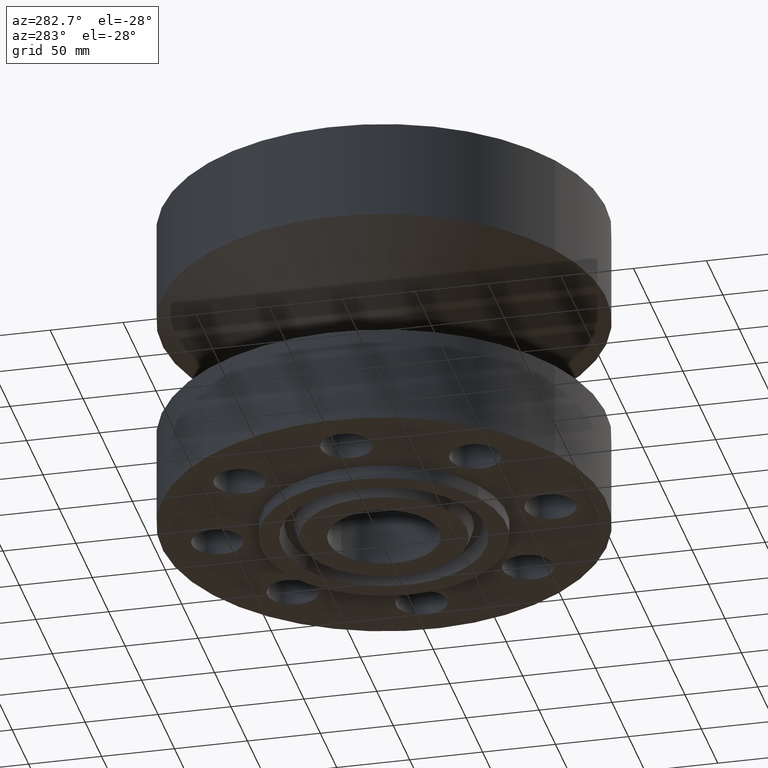
[diagram: clean part render]
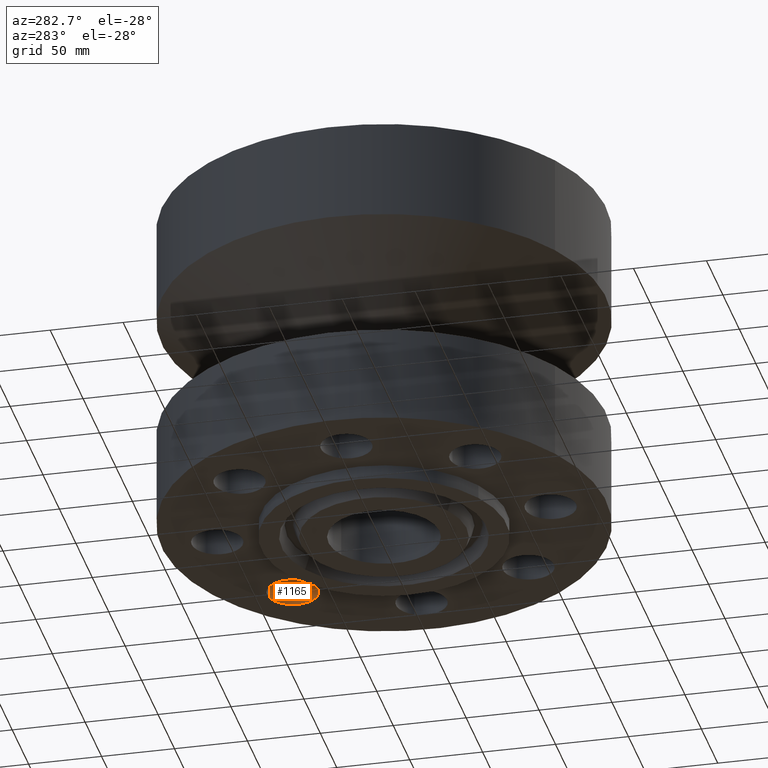
[diagram: same view with one face highlighted and labeled with its STEP entity id]
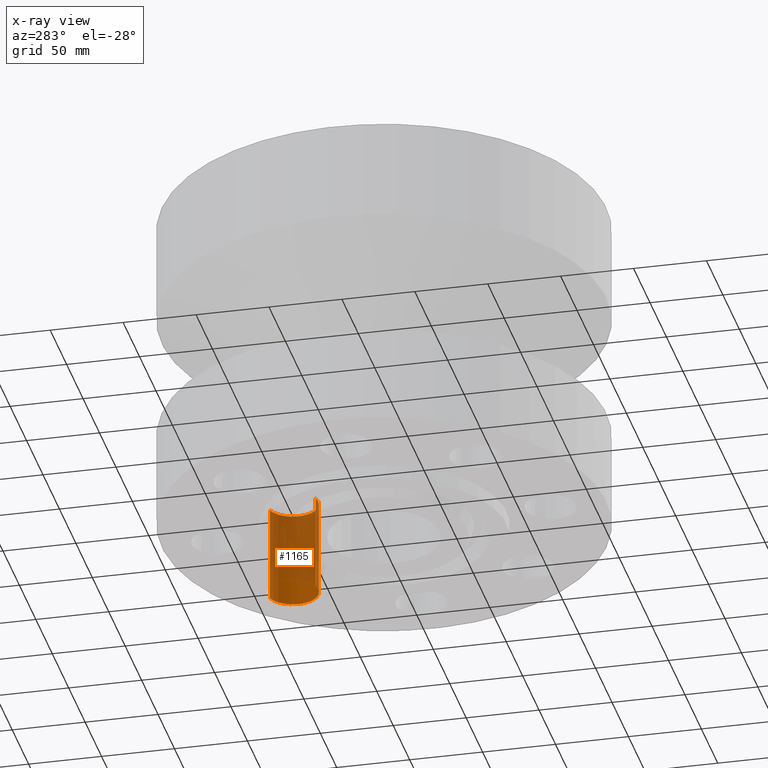
[diagram: x-ray of the same camera — body ghosted, the highlighted face saturated]
A machine part, auxiliary view. The second image highlights one B-rep face of the part: STEP entity #1165.
The next image is the same camera in x-ray: the body ghosted, the highlighted face saturated — about 70% of this face is hidden behind the body in this view.
In plain terms, the highlighted cylindrical surface (edge-blend (fillet) strip) has radius 17.526 mm, axis along (0, -0, 1).
Its self-contained STEP definition (entity closure, byte-faithful):
#235=AXIS2_PLACEMENT_3D('Circle Axis2P3D',#233,#234,$) ;
#1138=AXIS2_PLACEMENT_3D('Cylinder Axis2P3D',#1135,#1136,#1137) ;
#1156=AXIS2_PLACEMENT_3D('Circle Axis2P3D',#1154,#1155,$) ;
#233=CARTESIAN_POINT('Axis2P3D Location',(3.18198051535,3.18198051535,0.)) ;
#237=CARTESIAN_POINT('Vertex',(3.37624279184,3.84406976004,0.)) ;
#239=CARTESIAN_POINT('Vertex',(2.98771823886,2.51989127066,0.)) ;
#1135=CARTESIAN_POINT('Axis2P3D Location',(3.18198051535,3.18198051535,0.00393700787402)) ;
#1140=CARTESIAN_POINT('Line Origine',(3.37624279184,3.84406976004,1.31000000001)) ;
#1144=CARTESIAN_POINT('Vertex',(3.37624279184,3.84406976004,2.62000000001)) ;
#1147=CARTESIAN_POINT('Line Origine',(2.98771823886,2.51989127066,1.31000000001)) ;
#1151=CARTESIAN_POINT('Vertex',(2.98771823886,2.51989127066,2.62000000001)) ;
#1154=CARTESIAN_POINT('Axis2P3D Location',(3.18198051535,3.18198051535,2.62000000001)) ;
#234=DIRECTION('Axis2P3D Direction',(0.,0.,-0.0393700787402)) ;
#1136=DIRECTION('Axis2P3D Direction',(0.,-0.,0.0393700787402)) ;
#1137=DIRECTION('Axis2P3D XDirection',(0.0110842335096,0.0377775444876,0.)) ;
#1141=DIRECTION('Vector Direction',(0.,0.,0.0393700787402)) ;
#1148=DIRECTION('Vector Direction',(0.,0.,0.0393700787402)) ;
#1155=DIRECTION('Axis2P3D Direction',(0.,-0.,0.0393700787402)) ;
#1142=VECTOR('Line Direction',#1141,0.0393700787402) ;
#1149=VECTOR('Line Direction',#1148,0.0393700787402) ;
#1160=ORIENTED_EDGE('',*,*,#1146,.T.) ;
#1161=ORIENTED_EDGE('',*,*,#241,.T.) ;
#1162=ORIENTED_EDGE('',*,*,#1153,.F.) ;
#1163=ORIENTED_EDGE('',*,*,#1158,.F.) ;
#1165=ADVANCED_FACE('PartBody',(#1164),#1139,.F.) ;
#236=CIRCLE('generated circle',#235,0.690000000003) ;
#1157=CIRCLE('generated circle',#1156,0.690000000003) ;
#1139=CYLINDRICAL_SURFACE('generated cylinder',#1138,0.690000000003) ;
#241=EDGE_CURVE('',#238,#240,#236,.T.) ;
#1146=EDGE_CURVE('',#1145,#238,#1143,.F.) ;
#1153=EDGE_CURVE('',#1152,#240,#1150,.F.) ;
#1158=EDGE_CURVE('',#1145,#1152,#1157,.F.) ;
#1159=EDGE_LOOP('',(#1160,#1161,#1162,#1163)) ;
#1164=FACE_OUTER_BOUND('',#1159,.T.) ;
#1143=LINE('Line',#1140,#1142) ;
#1150=LINE('Line',#1147,#1149) ;
#238=VERTEX_POINT('',#237) ;
#240=VERTEX_POINT('',#239) ;
#1145=VERTEX_POINT('',#1144) ;
#1152=VERTEX_POINT('',#1151) ;